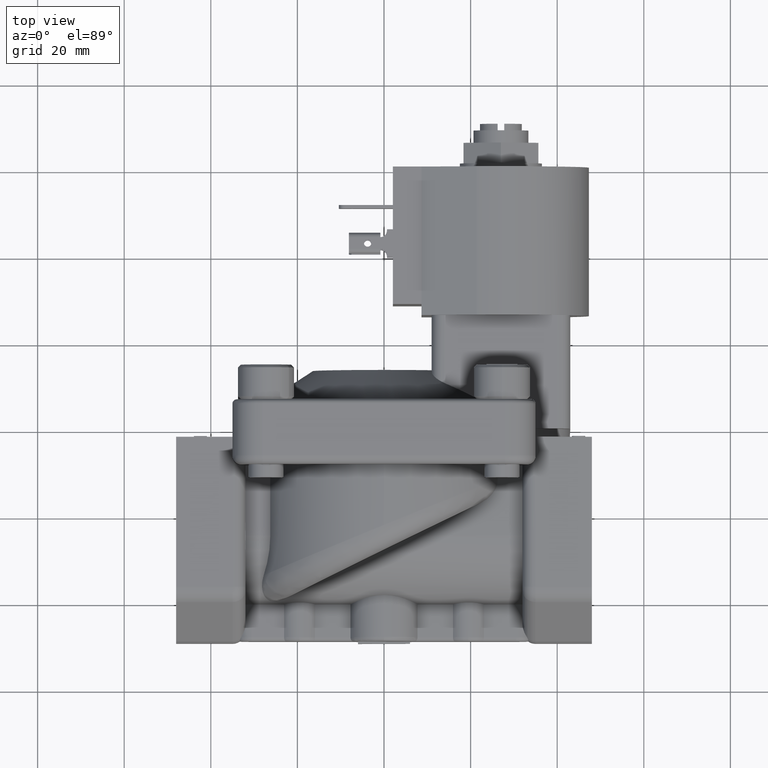
[diagram: clean part render]
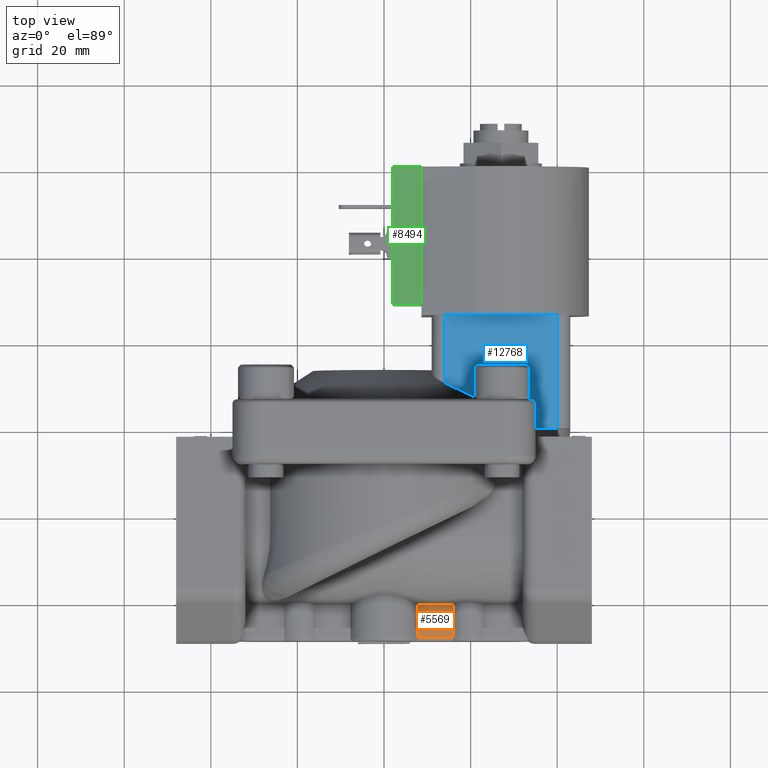
[diagram: same view with three faces highlighted in distinct colors, each labeled with its STEP entity id]
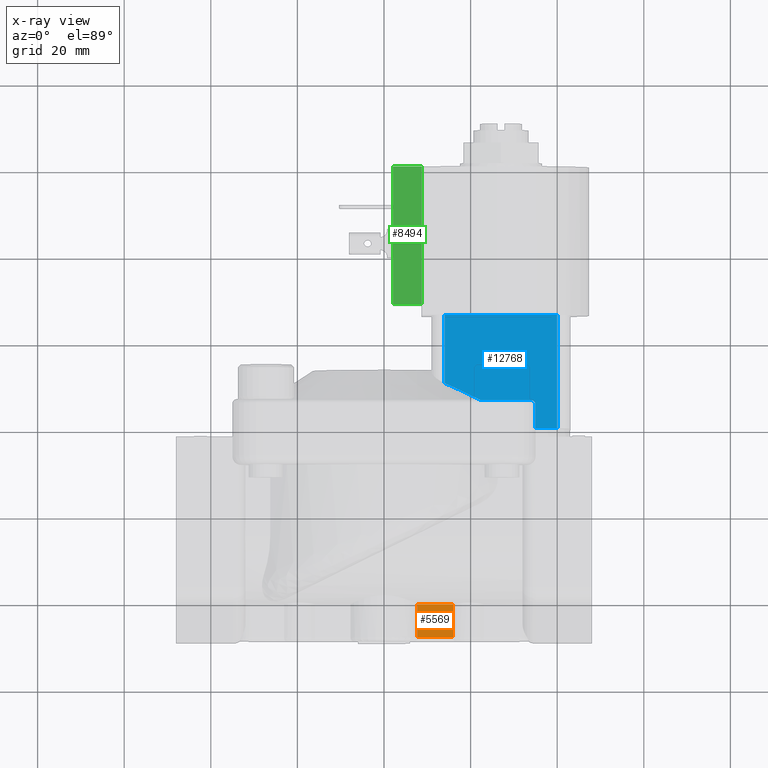
[diagram: x-ray of the same camera — body ghosted, the three highlighted faces saturated]
A machine part, top view with three faces highlighted in distinct colors.
The next image is the same camera in x-ray (body ghosted, the three faces saturated) — at least one of them is partly hidden behind the body in this view.
Their STEP definitions:

[orange] entity #5569 — the highlighted planar face has unit normal (0, 0, -1).
#1011 = AXIS2_PLACEMENT_3D ( 'NONE', #3118, #13171, #1961 ) ;
#1741 = ORIENTED_EDGE ( 'NONE', *, *, #7264, .F. ) ;
#1961 = DIRECTION ( 'NONE',  ( 0.000000000000000000, -1.000000000000000000, 0.000000000000000000 ) ) ;
#2011 = DIRECTION ( 'NONE',  ( 0.000000000000000000, -1.000000000000000000, 0.000000000000000000 ) ) ;
#2380 = CARTESIAN_POINT ( 'NONE',  ( 32.00000000000000000, -40.41249499599599915, 3.500000000000000000 ) ) ;
#3118 = CARTESIAN_POINT ( 'NONE',  ( 15.92928578572860232, 0.001000000000000999872, 3.500000000000000000 ) ) ;
#3160 = DIRECTION ( 'NONE',  ( 0.000000000000000000, 1.000000000000000000, 0.000000000000000000 ) ) ;
#4037 = CARTESIAN_POINT ( 'NONE',  ( 15.92928578572860232, -48.00000000000000000, 3.500000000000000000 ) ) ;
#4399 = EDGE_CURVE ( 'NONE', #7284, #8171, #9008, .T. ) ;
#4459 = LINE ( 'NONE', #8839, #4941 ) ;
#4941 = VECTOR ( 'NONE', #3160, 1000.000000000000000 ) ;
#5210 = CARTESIAN_POINT ( 'NONE',  ( 15.92928578572860232, 0.001000000000000999872, 3.500000000000000000 ) ) ;
#5350 = EDGE_CURVE ( 'NONE', #10176, #7284, #4459, .T. ) ;
#5363 = LINE ( 'NONE', #4037, #9434 ) ;
#5390 = PLANE ( 'NONE',  #1011 ) ;
#5542 = CARTESIAN_POINT ( 'NONE',  ( 15.92928578572857390, -40.41249499599599915, 3.500000000000000000 ) ) ;
#5569 = ADVANCED_FACE ( 'NONE', ( #8733 ), #5390, .F. ) ;
#5944 = VECTOR ( 'NONE', #2011, 1000.000000000000000 ) ;
#5977 = ORIENTED_EDGE ( 'NONE', *, *, #4399, .F. ) ;
#6515 = ORIENTED_EDGE ( 'NONE', *, *, #7175, .F. ) ;
#6672 = EDGE_LOOP ( 'NONE', ( #1741, #6515, #5977, #7204 ) ) ;
#7175 = EDGE_CURVE ( 'NONE', #8171, #12878, #14171, .T. ) ;
#7204 = ORIENTED_EDGE ( 'NONE', *, *, #5350, .F. ) ;
#7264 = EDGE_CURVE ( 'NONE', #12878, #10176, #5363, .T. ) ;
#7284 = VERTEX_POINT ( 'NONE', #13137 ) ;
#8171 = VERTEX_POINT ( 'NONE', #5542 ) ;
#8733 = FACE_OUTER_BOUND ( 'NONE', #6672, .T. ) ;
#8839 = CARTESIAN_POINT ( 'NONE',  ( 7.745966692414840260, 0.001000000000000999872, 3.500000000000000000 ) ) ;
#9008 = LINE ( 'NONE', #2380, #13389 ) ;
#9167 = CARTESIAN_POINT ( 'NONE',  ( 7.745966692414841148, -48.00000000000000000, 3.500000000000000000 ) ) ;
#9382 = CARTESIAN_POINT ( 'NONE',  ( 15.92928578572855258, -48.00000000000000000, 3.500000000000000000 ) ) ;
#9434 = VECTOR ( 'NONE', #10736, 1000.000000000000000 ) ;
#10176 = VERTEX_POINT ( 'NONE', #9167 ) ;
#10736 = DIRECTION ( 'NONE',  ( -1.000000000000000000, 0.000000000000000000, 0.000000000000000000 ) ) ;
#12878 = VERTEX_POINT ( 'NONE', #9382 ) ;
#13137 = CARTESIAN_POINT ( 'NONE',  ( 7.745966692414837595, -40.41249499599599915, 3.500000000000000444 ) ) ;
#13171 = DIRECTION ( 'NONE',  ( 0.000000000000000000, 0.000000000000000000, -1.000000000000000000 ) ) ;
#13389 = VECTOR ( 'NONE', #13451, 1000.000000000000000 ) ;
#13451 = DIRECTION ( 'NONE',  ( 1.000000000000000000, 0.000000000000000000, 0.000000000000000000 ) ) ;
#14171 = LINE ( 'NONE', #5210, #5944 ) ;

[blue] entity #12768 — the highlighted planar face has unit normal (0, 0, 1).
#55 = ORIENTED_EDGE ( 'NONE', *, *, #11393, .T. ) ;
#229 = PLANE ( 'NONE',  #4156 ) ;
#248 = CARTESIAN_POINT ( 'NONE',  ( 18.14051096081207604, 8.607393929940416299, 16.00000000000000000 ) ) ;
#600 = CARTESIAN_POINT ( 'NONE',  ( 34.00000000000000000, 6.500000000000000000, 16.00000000000000000 ) ) ;
#849 = CARTESIAN_POINT ( 'NONE',  ( 11.00000000000000000, 26.20000000000000284, 16.00000000000000000 ) ) ;
#882 = VERTEX_POINT ( 'NONE', #5407 ) ;
#925 = DIRECTION ( 'NONE',  ( -1.000000000000000000, 0.000000000000000000, 0.000000000000000000 ) ) ;
#1254 = CARTESIAN_POINT ( 'NONE',  ( 18.17561842955757712, 8.590627368998555724, 16.00000000000000355 ) ) ;
#1333 = CARTESIAN_POINT ( 'NONE',  ( 18.21235594287633930, 8.573071850508831915, 16.00000000000000000 ) ) ;
#1618 = LINE ( 'NONE', #9262, #8490 ) ;
#1633 = CARTESIAN_POINT ( 'NONE',  ( 14.00000000000000000, 26.20000000000000284, 16.00000000000000000 ) ) ;
#1648 = CARTESIAN_POINT ( 'NONE',  ( 40.00000000000000000, 26.20000000000000284, 16.00000000000000000 ) ) ;
#1795 = LINE ( 'NONE', #1648, #3424 ) ;
#1801 = VECTOR ( 'NONE', #2731, 1000.000000000000000 ) ;
#2031 = EDGE_CURVE ( 'NONE', #3799, #6341, #6227, .T. ) ;
#2731 = DIRECTION ( 'NONE',  ( 0.000000000000000000, -1.000000000000000000, 0.000000000000000000 ) ) ;
#2842 = CARTESIAN_POINT ( 'NONE',  ( 40.00000000000000000, 26.20000000000000284, 16.00000000000000000 ) ) ;
#2867 = VERTEX_POINT ( 'NONE', #10904 ) ;
#3422 = ORIENTED_EDGE ( 'NONE', *, *, #6114, .T. ) ;
#3424 = VECTOR ( 'NONE', #7402, 1000.000000000000000 ) ;
#3559 = DIRECTION ( 'NONE',  ( 1.000000000000000000, 0.000000000000000000, 0.000000000000000000 ) ) ;
#3585 = CARTESIAN_POINT ( 'NONE',  ( 0.000000000000000000, 6.500000000000000000, 16.00000000000000000 ) ) ;
#3648 = CARTESIAN_POINT ( 'NONE',  ( 14.00000008085026160, 10.47072347718482099, 16.00000000000000000 ) ) ;
#3799 = VERTEX_POINT ( 'NONE', #2842 ) ;
#4025 = ORIENTED_EDGE ( 'NONE', *, *, #11081, .T. ) ;
#4156 = AXIS2_PLACEMENT_3D ( 'NONE', #4651, #9895, #3559 ) ;
#4211 = VERTEX_POINT ( 'NONE', #9528 ) ;
#4450 = CARTESIAN_POINT ( 'NONE',  ( 22.36626924634504832, 6.500000000000000000, 16.00000000000000000 ) ) ;
#4651 = CARTESIAN_POINT ( 'NONE',  ( 11.00000000000000000, 26.20000000000000284, 16.00000000000000000 ) ) ;
#4669 = CARTESIAN_POINT ( 'NONE',  ( 19.51680495691699235, 7.949301912610782672, 16.00000000000000355 ) ) ;
#4734 = CARTESIAN_POINT ( 'NONE',  ( 14.00000008085026160, 10.47072347718482099, 16.00000000000000000 ) ) ;
#4969 = LINE ( 'NONE', #8251, #5695 ) ;
#5407 = CARTESIAN_POINT ( 'NONE',  ( 40.00000000000000000, 0.000000000000000000, 16.00000000000000000 ) ) ;
#5507 = CARTESIAN_POINT ( 'NONE',  ( 34.00000000000000000, 5.500000000000000000, 16.00000000000000000 ) ) ;
#5539 = CARTESIAN_POINT ( 'NONE',  ( 35.00000000000000000, 0.000000000000000000, 16.00000000000000000 ) ) ;
#5695 = VECTOR ( 'NONE', #7171, 1000.000000000000000 ) ;
#6114 = EDGE_CURVE ( 'NONE', #6341, #14288, #6228, .T. ) ;
#6227 = LINE ( 'NONE', #9360, #13205 ) ;
#6228 = LINE ( 'NONE', #849, #12154 ) ;
#6341 = VERTEX_POINT ( 'NONE', #13278 ) ;
#6396 = VECTOR ( 'NONE', #9199, 1000.000000000000000 ) ;
#6726 = EDGE_LOOP ( 'NONE', ( #8504, #7827, #13673, #3422, #4025, #55, #12293, #8860, #10373 ) ) ;
#7171 = DIRECTION ( 'NONE',  ( 0.000000000000000000, -1.000000000000000000, 0.000000000000000000 ) ) ;
#7402 = DIRECTION ( 'NONE',  ( 0.000000000000000000, 1.000000000000000000, 0.000000000000000000 ) ) ;
#7788 = B_SPLINE_CURVE_WITH_KNOTS ( 'NONE', 3,
 ( #4734, #9186, #11076, #12386, #12317, #10055, #9055, #248, #1254, #13631, #1333, #4669, #8105, #4450 ),
 .UNSPECIFIED., .F., .F.,
 ( 4, 1, 1, 1, 1, 1, 1, 2, 2, 4 ),
 ( 0.000000000000000000, 0.2499999999999936717, 0.3749999999999905076, 0.4374999999999893974, 0.4687499999999892308, 0.4843749999999895084, 0.4921874999999902855, 0.4960937499999906186, 0.4999999999999910072, 1.000000000000000000 ),
 .UNSPECIFIED. ) ;
#7827 = ORIENTED_EDGE ( 'NONE', *, *, #11766, .T. ) ;
#7944 = EDGE_CURVE ( 'NONE', #8836, #882, #1618, .T. ) ;
#8017 = VERTEX_POINT ( 'NONE', #600 ) ;
#8041 = LINE ( 'NONE', #3585, #6396 ) ;
#8105 = CARTESIAN_POINT ( 'NONE',  ( 20.89807205545295332, 7.259889771066233344, 15.99999999999999645 ) ) ;
#8165 = DIRECTION ( 'NONE',  ( 1.000000000000000000, 0.000000000000000000, 0.000000000000000000 ) ) ;
#8251 = CARTESIAN_POINT ( 'NONE',  ( 35.00000000000000000, 26.20000000000000284, 16.00000000000000000 ) ) ;
#8389 = EDGE_CURVE ( 'NONE', #4211, #8017, #8041, .T. ) ;
#8395 = EDGE_CURVE ( 'NONE', #2867, #8836, #4969, .T. ) ;
#8490 = VECTOR ( 'NONE', #8165, 1000.000000000000000 ) ;
#8504 = ORIENTED_EDGE ( 'NONE', *, *, #7944, .T. ) ;
#8578 = DIRECTION ( 'NONE',  ( -1.000000000000000000, 0.000000000000000000, 0.000000000000000000 ) ) ;
#8836 = VERTEX_POINT ( 'NONE', #5539 ) ;
#8860 = ORIENTED_EDGE ( 'NONE', *, *, #10798, .F. ) ;
#9055 = CARTESIAN_POINT ( 'NONE',  ( 18.05871222229594508, 8.646409316144184842, 16.00000000000000355 ) ) ;
#9186 = CARTESIAN_POINT ( 'NONE',  ( 14.65744488505723631, 10.19522229075290376, 15.99999999999999289 ) ) ;
#9199 = DIRECTION ( 'NONE',  ( 1.000000000000000000, 0.000000000000000000, 0.000000000000000000 ) ) ;
#9262 = CARTESIAN_POINT ( 'NONE',  ( 11.00000000000000000, 0.000000000000000000, 16.00000000000000000 ) ) ;
#9360 = CARTESIAN_POINT ( 'NONE',  ( 11.00000000000000000, 26.20000000000000284, 16.00000000000000000 ) ) ;
#9528 = CARTESIAN_POINT ( 'NONE',  ( 22.36626924634504832, 6.500000000000000000, 16.00000000000000000 ) ) ;
#9564 = LINE ( 'NONE', #1633, #1801 ) ;
#9895 = DIRECTION ( 'NONE',  ( 0.000000000000000000, 0.000000000000000000, 1.000000000000000000 ) ) ;
#9936 = DIRECTION ( 'NONE',  ( 0.000000000000000000, 0.000000000000000000, 1.000000000000000000 ) ) ;
#10055 = CARTESIAN_POINT ( 'NONE',  ( 17.89558949949034528, 8.724013731242701297, 16.00000000000000355 ) ) ;
#10373 = ORIENTED_EDGE ( 'NONE', *, *, #8395, .T. ) ;
#10798 = EDGE_CURVE ( 'NONE', #2867, #8017, #11772, .T. ) ;
#10904 = CARTESIAN_POINT ( 'NONE',  ( 35.00000000000000000, 5.500000000000000000, 16.00000000000000000 ) ) ;
#11076 = CARTESIAN_POINT ( 'NONE',  ( 15.67833697194833142, 9.750785519360082532, 16.00000000000000711 ) ) ;
#11081 = EDGE_CURVE ( 'NONE', #14288, #12442, #9564, .T. ) ;
#11393 = EDGE_CURVE ( 'NONE', #12442, #4211, #7788, .T. ) ;
#11766 = EDGE_CURVE ( 'NONE', #882, #3799, #1795, .T. ) ;
#11772 = CIRCLE ( 'NONE', #13641, 1.000000000000000888 ) ;
#12154 = VECTOR ( 'NONE', #925, 1000.000000000000000 ) ;
#12293 = ORIENTED_EDGE ( 'NONE', *, *, #8389, .T. ) ;
#12317 = CARTESIAN_POINT ( 'NONE',  ( 17.57124307078590064, 8.877517132203683659, 16.00000000000000711 ) ) ;
#12386 = CARTESIAN_POINT ( 'NONE',  ( 16.93014628100403129, 9.177702217181428423, 16.00000000000000000 ) ) ;
#12442 = VERTEX_POINT ( 'NONE', #3648 ) ;
#12768 = ADVANCED_FACE ( 'NONE', ( #13251 ), #229, .T. ) ;
#13205 = VECTOR ( 'NONE', #13789, 1000.000000000000000 ) ;
#13251 = FACE_OUTER_BOUND ( 'NONE', #6726, .T. ) ;
#13278 = CARTESIAN_POINT ( 'NONE',  ( 39.52606881667190208, 26.20000000000000284, 16.00000000000000000 ) ) ;
#13631 = CARTESIAN_POINT ( 'NONE',  ( 18.19903471239330628, 8.579439510339474495, 16.00000000000000000 ) ) ;
#13641 = AXIS2_PLACEMENT_3D ( 'NONE', #5507, #9936, #8578 ) ;
#13673 = ORIENTED_EDGE ( 'NONE', *, *, #2031, .T. ) ;
#13789 = DIRECTION ( 'NONE',  ( -1.000000000000000000, 0.000000000000000000, 0.000000000000000000 ) ) ;
#14155 = CARTESIAN_POINT ( 'NONE',  ( 14.00000000000000000, 26.20000000000000284, 16.00000000000000000 ) ) ;
#14288 = VERTEX_POINT ( 'NONE', #14155 ) ;

[green] entity #8494 — the highlighted planar face has unit normal (0, 0, -1).
#520 = ORIENTED_EDGE ( 'NONE', *, *, #5668, .F. ) ;
#552 = VERTEX_POINT ( 'NONE', #1258 ) ;
#1258 = CARTESIAN_POINT ( 'NONE',  ( 8.661200000000000898, 60.49000000000000199, 15.87500000000000000 ) ) ;
#1631 = CARTESIAN_POINT ( 'NONE',  ( 2.057199999999999918, 60.49000000000000199, 15.87500000000000000 ) ) ;
#1897 = CARTESIAN_POINT ( 'NONE',  ( 2.057199999999999918, 28.74000000000000199, 15.87500000000000000 ) ) ;
#1986 = PLANE ( 'NONE',  #2220 ) ;
#2220 = AXIS2_PLACEMENT_3D ( 'NONE', #9704, #9558, #4019 ) ;
#2400 = DIRECTION ( 'NONE',  ( 0.000000000000000000, -1.000000000000000000, 0.000000000000000000 ) ) ;
#2912 = DIRECTION ( 'NONE',  ( 0.000000000000000000, 1.000000000000000000, 0.000000000000000000 ) ) ;
#2946 = ORIENTED_EDGE ( 'NONE', *, *, #4864, .F. ) ;
#3755 = DIRECTION ( 'NONE',  ( -1.000000000000000000, 0.000000000000000000, -7.417621370250799561E-16 ) ) ;
#4019 = DIRECTION ( 'NONE',  ( 0.000000000000000000, -1.000000000000000000, 0.000000000000000000 ) ) ;
#4124 = EDGE_LOOP ( 'NONE', ( #11293, #520, #2946, #8777 ) ) ;
#4364 = LINE ( 'NONE', #8813, #8729 ) ;
#4471 = VECTOR ( 'NONE', #2912, 1000.000000000000000 ) ;
#4864 = EDGE_CURVE ( 'NONE', #9338, #10347, #5647, .T. ) ;
#5049 = FACE_OUTER_BOUND ( 'NONE', #4124, .T. ) ;
#5647 = LINE ( 'NONE', #12272, #11654 ) ;
#5668 = EDGE_CURVE ( 'NONE', #10347, #12232, #8449, .T. ) ;
#5752 = LINE ( 'NONE', #13541, #6243 ) ;
#6243 = VECTOR ( 'NONE', #2400, 1000.000000000000000 ) ;
#6747 = DIRECTION ( 'NONE',  ( -1.000000000000000000, 0.000000000000000000, -7.417621370250799561E-16 ) ) ;
#7033 = EDGE_CURVE ( 'NONE', #552, #12232, #4364, .T. ) ;
#8134 = CARTESIAN_POINT ( 'NONE',  ( 8.661200000000000898, 28.74000000000000199, 15.87500000000000000 ) ) ;
#8449 = LINE ( 'NONE', #1897, #4471 ) ;
#8494 = ADVANCED_FACE ( 'NONE', ( #5049 ), #1986, .F. ) ;
#8729 = VECTOR ( 'NONE', #3755, 1000.000000000000000 ) ;
#8777 = ORIENTED_EDGE ( 'NONE', *, *, #12762, .F. ) ;
#8813 = CARTESIAN_POINT ( 'NONE',  ( 8.661200000000000898, 60.49000000000000199, 15.87500000000000000 ) ) ;
#9338 = VERTEX_POINT ( 'NONE', #8134 ) ;
#9558 = DIRECTION ( 'NONE',  ( 7.417621370250799561E-16, 0.000000000000000000, -1.000000000000000000 ) ) ;
#9704 = CARTESIAN_POINT ( 'NONE',  ( 8.661200000000000898, 28.74000000000000199, 15.87500000000000000 ) ) ;
#10347 = VERTEX_POINT ( 'NONE', #12947 ) ;
#11293 = ORIENTED_EDGE ( 'NONE', *, *, #7033, .T. ) ;
#11654 = VECTOR ( 'NONE', #6747, 1000.000000000000000 ) ;
#12232 = VERTEX_POINT ( 'NONE', #1631 ) ;
#12272 = CARTESIAN_POINT ( 'NONE',  ( 8.661200000000000898, 28.74000000000000199, 15.87500000000000000 ) ) ;
#12762 = EDGE_CURVE ( 'NONE', #552, #9338, #5752, .T. ) ;
#12947 = CARTESIAN_POINT ( 'NONE',  ( 2.057199999999999918, 28.74000000000000199, 15.87500000000000000 ) ) ;
#13541 = CARTESIAN_POINT ( 'NONE',  ( 8.661200000000000898, 60.49000000000000199, 15.87500000000000000 ) ) ;